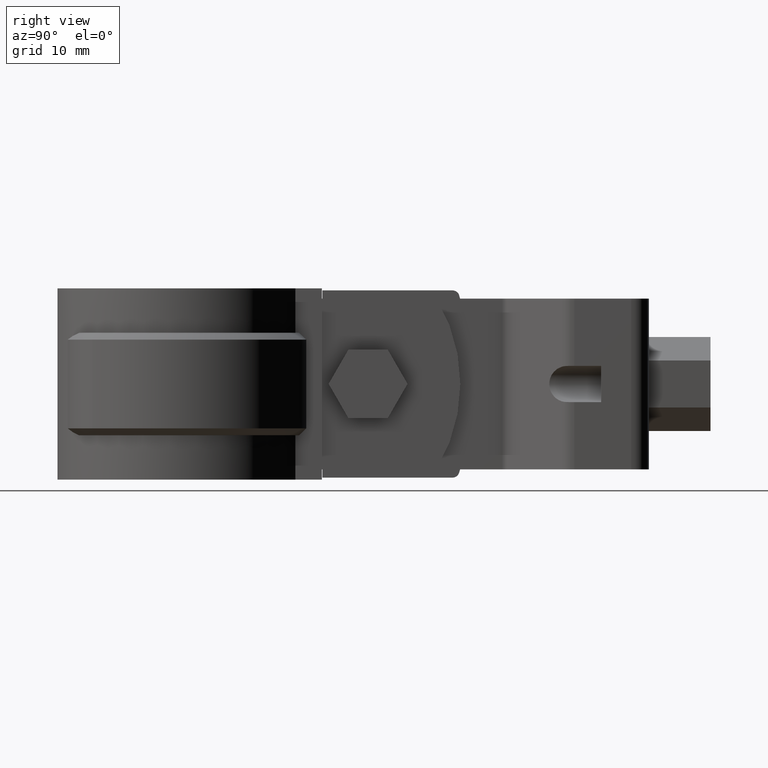
[diagram: clean part render]
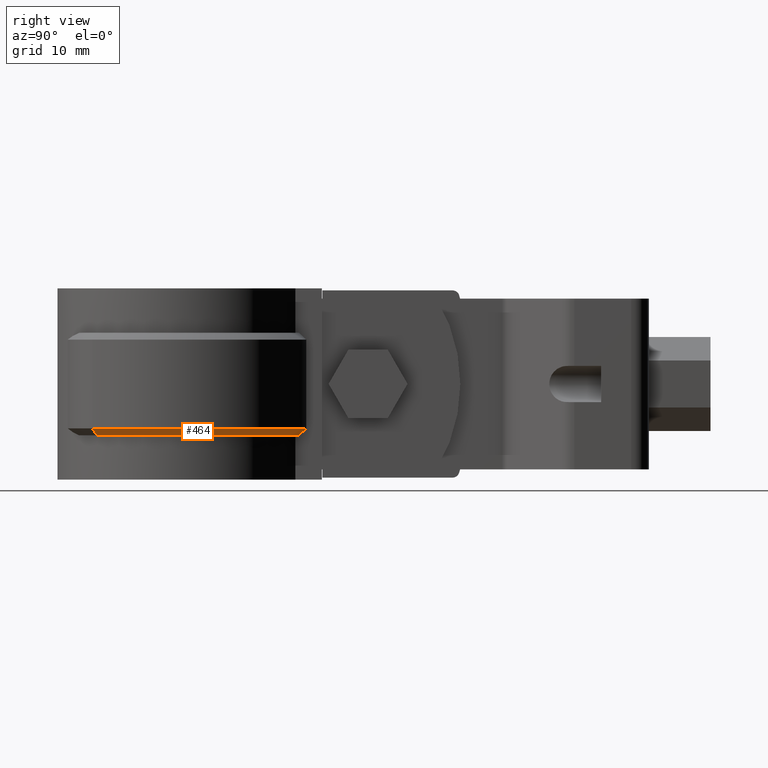
[diagram: same view with one face highlighted and labeled with its STEP entity id]
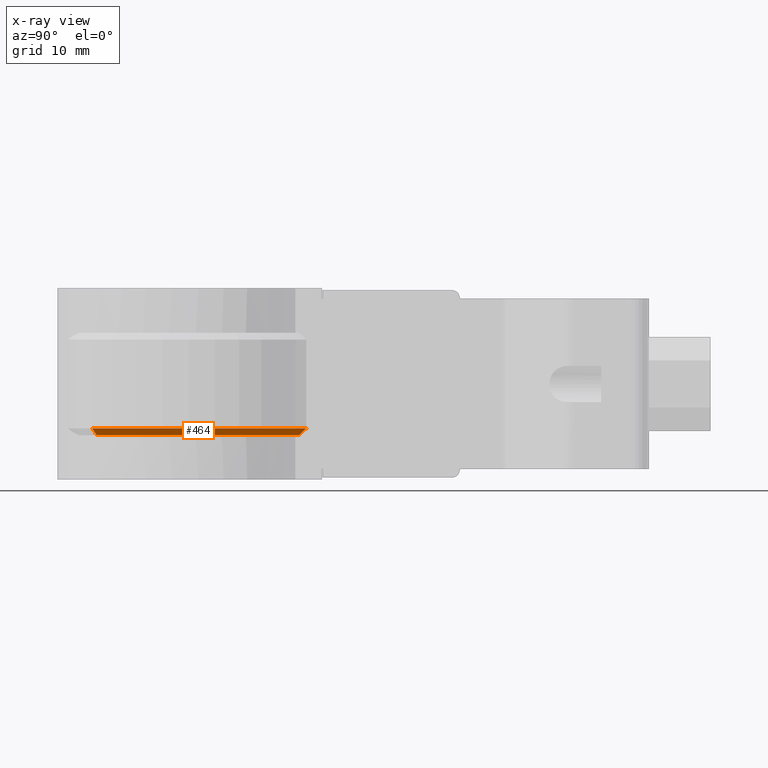
[diagram: x-ray of the same camera — body ghosted, the highlighted face saturated]
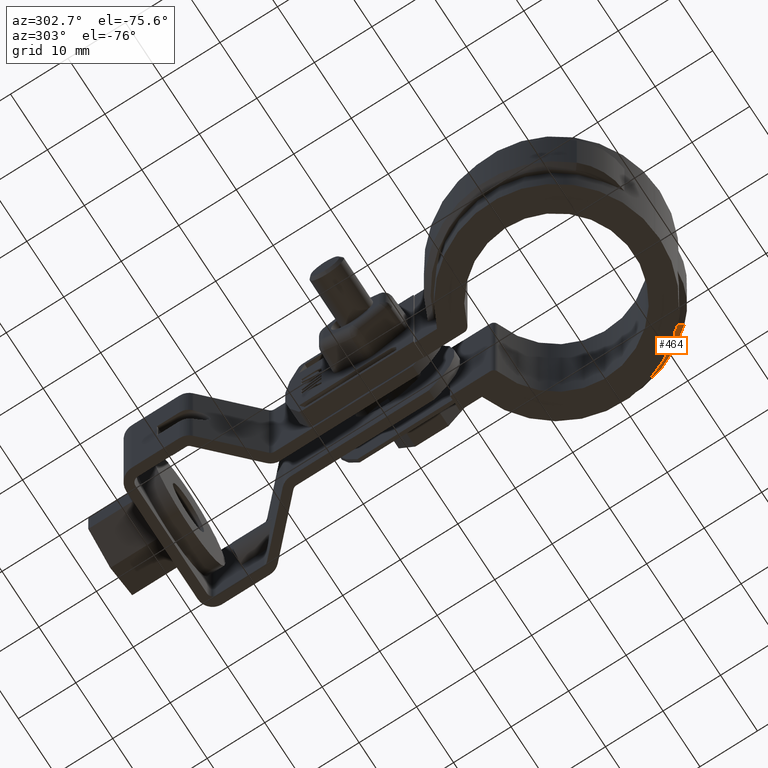
[diagram: same view with one face highlighted and labeled with its STEP entity id]
A machine part, right view. The second image highlights one B-rep face of the part: STEP entity #464.
The next image is the same camera in x-ray: the body ghosted, the highlighted face saturated — about 0% of this face is hidden behind the body in this view.
A second angle (auxiliary view) of the same face is appended — the face is thin or edge-on in the first view.
In plain terms, the highlighted conical surface has half-angle 45 deg.
Its self-contained STEP definition (entity closure, byte-faithful):
#464 = ADVANCED_FACE( '', ( #899 ), #900, .T. );
#899 = FACE_OUTER_BOUND( '', #1932, .T. );
#900 = CONICAL_SURFACE( '', #1933, 18.4350000000000, 0.785398163397448 );
#1932 = EDGE_LOOP( '', ( #4113, #4114, #4115, #4116 ) );
#1933 = AXIS2_PLACEMENT_3D( '', #4117, #4118, #4119 );
#4113 = ORIENTED_EDGE( '', *, *, #6295, .F. );
#4114 = ORIENTED_EDGE( '', *, *, #6305, .F. );
#4115 = ORIENTED_EDGE( '', *, *, #6285, .F. );
#4116 = ORIENTED_EDGE( '', *, *, #6306, .F. );
#4117 = CARTESIAN_POINT( '', ( -8.67361737988404E-016, 0.000000000000000, -20.0000000000000 ) );
#4118 = DIRECTION( '', ( 0.000000000000000, 0.000000000000000, 1.00000000000000 ) );
#4119 = DIRECTION( '', ( 1.00000000000000, 0.000000000000000, 0.000000000000000 ) );
#6285 = EDGE_CURVE( '', #7415, #7416, #7417, .T. );
#6295 = EDGE_CURVE( '', #7429, #7427, #7431, .T. );
#6305 = EDGE_CURVE( '', #7416, #7429, #7442, .T. );
#6306 = EDGE_CURVE( '', #7427, #7415, #7443, .F. );
#7415 = VERTEX_POINT( '', #10475 );
#7416 = VERTEX_POINT( '', #10476 );
#7417 = LINE( '', #10477, #10478 );
#7427 = VERTEX_POINT( '', #10493 );
#7429 = VERTEX_POINT( '', #10496 );
#7431 = B_SPLINE_CURVE_WITH_KNOTS( '', 3, ( #10499, #10500, #10501, #10502 ), .UNSPECIFIED., .F., .F., ( 4, 4 ), ( 707.079993475516, 707.081448128855 ), .UNSPECIFIED. );
#7442 = CIRCLE( '', #10518, 19.4350000000000 );
#7443 = CIRCLE( '', #10519, 18.4350000000000 );
#10475 = CARTESIAN_POINT( '', ( 13.8093023861862, -12.2127962648557, -20.0000000000000 ) );
#10476 = CARTESIAN_POINT( '', ( 14.5583830689193, -12.8752750424448, -19.0000000000000 ) );
#10477 = CARTESIAN_POINT( '', ( 13.8093023861862, -12.2127962648557, -20.0000000000000 ) );
#10478 = VECTOR( '', #12341, 1000.00000000000 );
#10493 = CARTESIAN_POINT( '', ( 6.10000000000001, 17.3965291078422, -20.0000000000000 ) );
#10496 = CARTESIAN_POINT( '', ( 6.10000000000001, 18.4528920497574, -19.0000000000000 ) );
#10499 = CARTESIAN_POINT( '', ( 6.10000000000001, 18.4528920497697, -18.9999999999883 ) );
#10500 = CARTESIAN_POINT( '', ( 6.10000000000001, 18.1012639178906, -19.3338593238486 ) );
#10501 = CARTESIAN_POINT( '', ( 6.10000000000001, 17.7491711698850, -19.6672227883386 ) );
#10502 = CARTESIAN_POINT( '', ( 6.10000000000001, 17.3965291078361, -20.0000000000058 ) );
#10518 = AXIS2_PLACEMENT_3D( '', #12372, #12373, #12374 );
#10519 = AXIS2_PLACEMENT_3D( '', #12375, #12376, #12377 );
#12341 = DIRECTION( '', ( 0.529680030416480, -0.468443236025451, 0.707106781186548 ) );
#12372 = CARTESIAN_POINT( '', ( -8.67361737988404E-016, 0.000000000000000, -19.0000000000000 ) );
#12373 = DIRECTION( '', ( 0.000000000000000, 0.000000000000000, 1.00000000000000 ) );
#12374 = DIRECTION( '', ( 1.00000000000000, 0.000000000000000, 0.000000000000000 ) );
#12375 = CARTESIAN_POINT( '', ( -8.67361737988404E-016, 0.000000000000000, -20.0000000000000 ) );
#12376 = DIRECTION( '', ( 0.000000000000000, 0.000000000000000, 1.00000000000000 ) );
#12377 = DIRECTION( '', ( 1.00000000000000, 0.000000000000000, 0.000000000000000 ) );